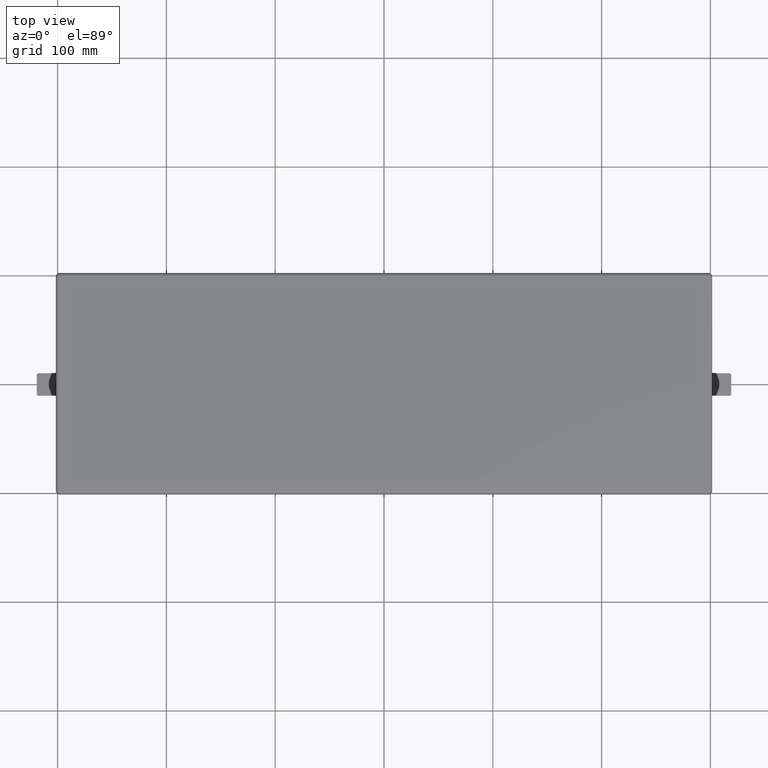
[diagram: clean part render]
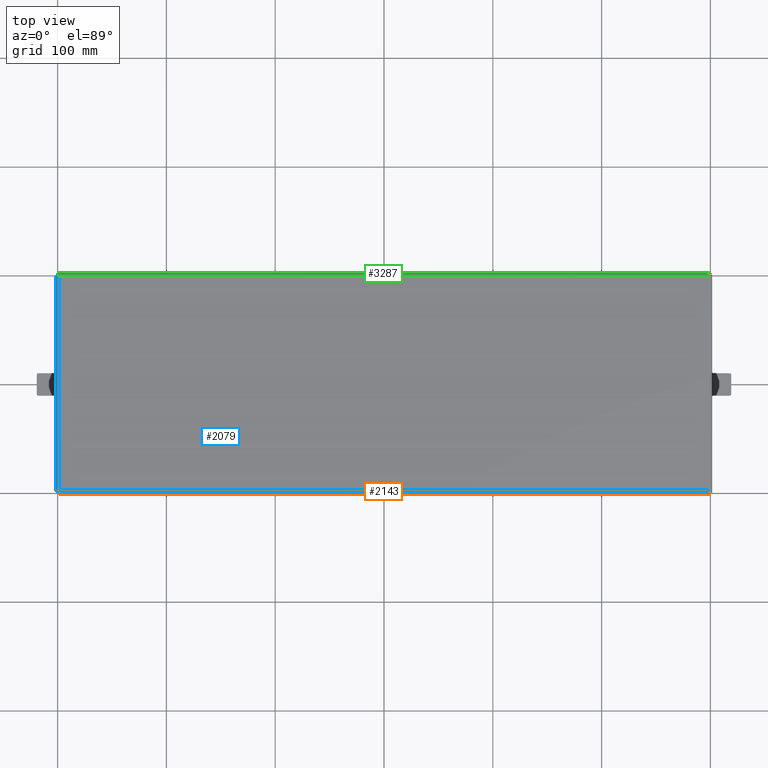
[diagram: same view with three faces highlighted in distinct colors, each labeled with its STEP entity id]
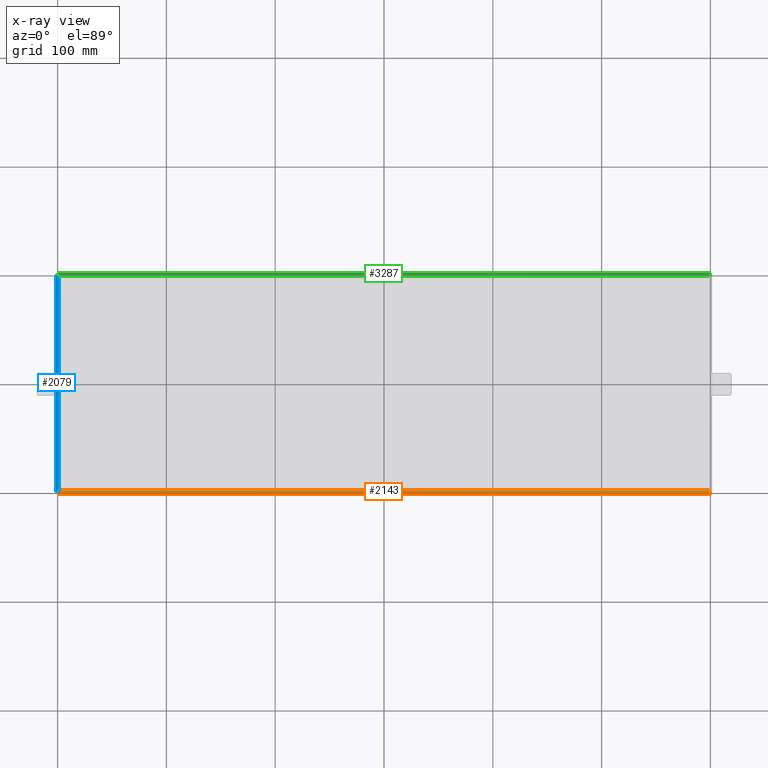
[diagram: x-ray of the same camera — body ghosted, the three highlighted faces saturated]
A machine part, top view with three faces highlighted in distinct colors.
The next image is the same camera in x-ray (body ghosted, the three faces saturated) — at least one of them is partly hidden behind the body in this view.
Their STEP definitions:

[orange] entity #2143 — the highlighted cylindrical surface (edge-blend (fillet) strip) has radius 3.048 mm, axis along (1, 0, 0).
#92 = LINE ( 'NONE', #402, #2644 ) ;
#109 = CARTESIAN_POINT ( 'NONE',  ( -11.80500000000000149, -3.996876721200198102, 0.9114097461231138730 ) ) ;
#356 = CARTESIAN_POINT ( 'NONE',  ( -11.76000000000000156, -3.895707963267948770, 1.000000000000000000 ) ) ;
#402 = CARTESIAN_POINT ( 'NONE',  ( 0.0000000000000000000, -3.879999999999999449, 1.000000000000000000 ) ) ;
#459 = EDGE_CURVE ( 'NONE', #3960, #3176, #3867, .T. ) ;
#462 = CARTESIAN_POINT ( 'NONE',  ( -11.87500000000000000, -3.999999999999999556, 0.8800000000000000044 ) ) ;
#511 = CARTESIAN_POINT ( 'NONE',  ( -11.87500000000000000, -3.879999999999999449, 0.8800000000000000044 ) ) ;
#513 = CARTESIAN_POINT ( 'NONE',  ( -11.81500000000006878, -4.000000000000000000, 0.8800000000000141043 ) ) ;
#558 = CARTESIAN_POINT ( 'NONE',  ( 11.75500000000080902, -3.879999999999484306, 1.000000000000000000 ) ) ;
#684 = CARTESIAN_POINT ( 'NONE',  ( -11.77999999999999936, -3.953745606396989132, 0.9759600210877819038 ) ) ;
#708 = CARTESIAN_POINT ( 'NONE',  ( -11.77500000000000036, -3.940434277644507599, 0.9848543666025109111 ) ) ;
#766 = CARTESIAN_POINT ( 'NONE',  ( 11.75500000000080902, -3.879999999999484306, 1.000000000000000000 ) ) ;
#788 = CARTESIAN_POINT ( 'NONE',  ( 11.77999999999999936, -3.953745606396989576, 0.9759600210877819038 ) ) ;
#839 = FACE_OUTER_BOUND ( 'NONE', #3502, .T. ) ;
#848 = CARTESIAN_POINT ( 'NONE',  ( 11.77499999999999503, -3.940434277644508931, 0.9848543666025110221 ) ) ;
#969 = CARTESIAN_POINT ( 'NONE',  ( -11.81500000000006878, -4.000000000000000000, 0.8800000000000141043 ) ) ;
#1032 = CARTESIAN_POINT ( 'NONE',  ( -11.80999999999999872, -4.000000000000000000, 0.8957079632679491032 ) ) ;
#1071 = CARTESIAN_POINT ( 'NONE',  ( 11.75999999999999979, -3.895707963267948326, 1.000000000000000000 ) ) ;
#1092 = B_SPLINE_CURVE_WITH_KNOTS ( 'NONE', 3,
 ( #1373, #2925, #3591, #3849, #1410, #788, #848, #3001, #1071, #766 ),
 .UNSPECIFIED., .F., .F.,
 ( 4, 2, 2, 2, 4 ),
 ( 0.0000000000000000000, 0.2500000000000000000, 0.5000000000000000000, 0.7500000000000000000, 1.000000000000000000 ),
 .UNSPECIFIED. ) ;
#1093 = VECTOR ( 'NONE', #2060, 39.37007874015748143 ) ;
#1181 = B_SPLINE_CURVE_WITH_KNOTS ( 'NONE', 3,
 ( #3538, #356, #1905, #708, #684, #1663, #2512, #109, #1032, #969 ),
 .UNSPECIFIED., .F., .F.,
 ( 4, 2, 2, 2, 4 ),
 ( 0.0000000000000000000, 0.2500000000000000000, 0.5000000000000000000, 0.7500000000000000000, 1.000000000000000000 ),
 .UNSPECIFIED. ) ;
#1183 = ORIENTED_EDGE ( 'NONE', *, *, #459, .T. ) ;
#1373 = CARTESIAN_POINT ( 'NONE',  ( 11.81499999999999773, -4.000000000000000000, 0.8800000000000000044 ) ) ;
#1410 = CARTESIAN_POINT ( 'NONE',  ( 11.79000000000000092, -3.975960021087781016, 0.9537456063969899089 ) ) ;
#1438 = AXIS2_PLACEMENT_3D ( 'NONE', #511, #1482, #3363 ) ;
#1482 = DIRECTION ( 'NONE',  ( 1.000000000000000000, 0.0000000000000000000, 0.0000000000000000000 ) ) ;
#1538 = CARTESIAN_POINT ( 'NONE',  ( -11.75500000000081080, -3.879999999999484750, 1.000000000000000000 ) ) ;
#1647 = DIRECTION ( 'NONE',  ( 1.000000000000000000, 0.0000000000000000000, -0.0000000000000000000 ) ) ;
#1648 = EDGE_CURVE ( 'NONE', #2258, #2941, #92, .T. ) ;
#1663 = CARTESIAN_POINT ( 'NONE',  ( -11.78999999999999915, -3.975960021087782348, 0.9537456063969897979 ) ) ;
#1691 = ORIENTED_EDGE ( 'NONE', *, *, #3340, .T. ) ;
#1815 = CYLINDRICAL_SURFACE ( 'NONE', #1438, 0.1199999999999999539 ) ;
#1905 = CARTESIAN_POINT ( 'NONE',  ( -11.76500000000000057, -3.911409746123112985, 0.9968767212001979905 ) ) ;
#2015 = ORIENTED_EDGE ( 'NONE', *, *, #2510, .T. ) ;
#2060 = DIRECTION ( 'NONE',  ( 1.000000000000000000, 0.0000000000000000000, 0.0000000000000000000 ) ) ;
#2143 = ADVANCED_FACE ( 'NONE', ( #839 ), #1815, .T. ) ;
#2258 = VERTEX_POINT ( 'NONE', #1538 ) ;
#2279 = CARTESIAN_POINT ( 'NONE',  ( 11.81499999999999773, -4.000000000000000000, 0.8800000000000000044 ) ) ;
#2510 = EDGE_CURVE ( 'NONE', #3176, #2941, #1092, .T. ) ;
#2512 = CARTESIAN_POINT ( 'NONE',  ( -11.79499999999999993, -3.984854366602510911, 0.9404342776445079322 ) ) ;
#2644 = VECTOR ( 'NONE', #1647, 39.37007874015748143 ) ;
#2925 = CARTESIAN_POINT ( 'NONE',  ( 11.80999999999999694, -3.999999999999999556, 0.8957079632679492143 ) ) ;
#2941 = VERTEX_POINT ( 'NONE', #558 ) ;
#3001 = CARTESIAN_POINT ( 'NONE',  ( 11.76499999999999879, -3.911409746123112985, 0.9968767212001979905 ) ) ;
#3176 = VERTEX_POINT ( 'NONE', #2279 ) ;
#3185 = ORIENTED_EDGE ( 'NONE', *, *, #1648, .F. ) ;
#3340 = EDGE_CURVE ( 'NONE', #2258, #3960, #1181, .T. ) ;
#3363 = DIRECTION ( 'NONE',  ( 0.0000000000000000000, 0.0000000000000000000, -1.000000000000000000 ) ) ;
#3502 = EDGE_LOOP ( 'NONE', ( #2015, #3185, #1691, #1183 ) ) ;
#3538 = CARTESIAN_POINT ( 'NONE',  ( -11.75500000000081080, -3.879999999999484750, 1.000000000000000000 ) ) ;
#3591 = CARTESIAN_POINT ( 'NONE',  ( 11.80500000000000149, -3.996876721200197657, 0.9114097461231137620 ) ) ;
#3849 = CARTESIAN_POINT ( 'NONE',  ( 11.79500000000000171, -3.984854366602508691, 0.9404342776445075991 ) ) ;
#3867 = LINE ( 'NONE', #462, #1093 ) ;
#3960 = VERTEX_POINT ( 'NONE', #513 ) ;

[blue] entity #2079 — the highlighted cylindrical surface (edge-blend (fillet) strip) has radius 3.048 mm, axis along (0, -1, 0).
#6 = LINE ( 'NONE', #2886, #793 ) ;
#28 = EDGE_CURVE ( 'NONE', #3611, #2258, #6, .T. ) ;
#88 = CARTESIAN_POINT ( 'NONE',  ( -11.87187672120019677, 3.930000000000000604, 0.9114097461231138730 ) ) ;
#235 = CARTESIAN_POINT ( 'NONE',  ( -11.87500000000000000, -3.939999999999999947, 0.8800000000000000044 ) ) ;
#271 = CARTESIAN_POINT ( 'NONE',  ( -11.75499999999999901, 4.000000000000000000, 0.8800000000000000044 ) ) ;
#331 = CARTESIAN_POINT ( 'NONE',  ( -11.75500000000080902, 3.879999999999484306, 1.000000000000000000 ) ) ;
#354 = CARTESIAN_POINT ( 'NONE',  ( -11.78640974612311609, 3.890000000000000124, 0.9968767212001979905 ) ) ;
#362 = EDGE_CURVE ( 'NONE', #3596, #2258, #3255, .T. ) ;
#473 = AXIS2_PLACEMENT_3D ( 'NONE', #271, #545, #3393 ) ;
#545 = DIRECTION ( 'NONE',  ( 0.0000000000000000000, -1.000000000000000000, 0.0000000000000000000 ) ) ;
#589 = CARTESIAN_POINT ( 'NONE',  ( -11.87500000000000000, 4.000000000000000000, 0.8800000000000000044 ) ) ;
#682 = CARTESIAN_POINT ( 'NONE',  ( -11.87500000000000000, 3.940000000000099867, 0.8800000000000242073 ) ) ;
#793 = VECTOR ( 'NONE', #1011, 39.37007874015748143 ) ;
#850 = CARTESIAN_POINT ( 'NONE',  ( -11.77070796326794877, -3.885000000000000231, 1.000000000000000000 ) ) ;
#898 = LINE ( 'NONE', #589, #1794 ) ;
#1011 = DIRECTION ( 'NONE',  ( 0.0000000000000000000, -1.000000000000000000, -0.0000000000000000000 ) ) ;
#1167 = EDGE_CURVE ( 'NONE', #3026, #3596, #898, .T. ) ;
#1210 = CARTESIAN_POINT ( 'NONE',  ( -11.85096002108778102, -3.915000000000000036, 0.9537456063969899089 ) ) ;
#1358 = EDGE_LOOP ( 'NONE', ( #1430, #2685, #2149, #3951 ) ) ;
#1430 = ORIENTED_EDGE ( 'NONE', *, *, #362, .T. ) ;
#1472 = CARTESIAN_POINT ( 'NONE',  ( -11.81543427764450627, -3.900000000000000355, 0.9848543666025110221 ) ) ;
#1507 = CARTESIAN_POINT ( 'NONE',  ( -11.87500000000000000, 3.940000000000099867, 0.8800000000000242073 ) ) ;
#1538 = CARTESIAN_POINT ( 'NONE',  ( -11.75500000000081080, -3.879999999999484750, 1.000000000000000000 ) ) ;
#1553 = CARTESIAN_POINT ( 'NONE',  ( -11.82874560639698913, -3.904999999999999361, 0.9759600210877819038 ) ) ;
#1596 = CARTESIAN_POINT ( 'NONE',  ( -11.85096002108778102, 3.914999999999999591, 0.9537456063969897979 ) ) ;
#1794 = VECTOR ( 'NONE', #2053, 39.37007874015748143 ) ;
#1949 = CARTESIAN_POINT ( 'NONE',  ( -11.75500000000080902, 3.879999999999484306, 1.000000000000000000 ) ) ;
#2053 = DIRECTION ( 'NONE',  ( 0.0000000000000000000, -1.000000000000000000, 0.0000000000000000000 ) ) ;
#2079 = ADVANCED_FACE ( 'NONE', ( #3377 ), #3059, .T. ) ;
#2087 = CARTESIAN_POINT ( 'NONE',  ( -11.75500000000081080, -3.879999999999484750, 1.000000000000000000 ) ) ;
#2147 = CARTESIAN_POINT ( 'NONE',  ( -11.87187672120019677, -3.930000000000000604, 0.9114097461231137620 ) ) ;
#2149 = ORIENTED_EDGE ( 'NONE', *, *, #2689, .T. ) ;
#2226 = CARTESIAN_POINT ( 'NONE',  ( -11.85985436660250691, 3.919999999999999929, 0.9404342776445079322 ) ) ;
#2258 = VERTEX_POINT ( 'NONE', #1538 ) ;
#2448 = CARTESIAN_POINT ( 'NONE',  ( -11.87500000000000000, -3.934999999999999609, 0.8957079632679492143 ) ) ;
#2530 = CARTESIAN_POINT ( 'NONE',  ( -11.81543427764450271, 3.899999999999999467, 0.9848543666025109111 ) ) ;
#2683 = B_SPLINE_CURVE_WITH_KNOTS ( 'NONE', 3,
 ( #1949, #3146, #354, #2530, #2883, #1596, #2226, #88, #3473, #682 ),
 .UNSPECIFIED., .F., .F.,
 ( 4, 2, 2, 2, 4 ),
 ( 0.0000000000000000000, 0.2500000000000000000, 0.5000000000000000000, 0.7500000000000000000, 1.000000000000000000 ),
 .UNSPECIFIED. ) ;
#2685 = ORIENTED_EDGE ( 'NONE', *, *, #28, .F. ) ;
#2689 = EDGE_CURVE ( 'NONE', #3611, #3026, #2683, .T. ) ;
#2883 = CARTESIAN_POINT ( 'NONE',  ( -11.82874560639698913, 3.904999999999999805, 0.9759600210877819038 ) ) ;
#2886 = CARTESIAN_POINT ( 'NONE',  ( -11.75499999999999901, 0.0000000000000000000, 1.000000000000000000 ) ) ;
#3026 = VERTEX_POINT ( 'NONE', #1507 ) ;
#3059 = CYLINDRICAL_SURFACE ( 'NONE', #473, 0.1199999999999999539 ) ;
#3146 = CARTESIAN_POINT ( 'NONE',  ( -11.77070796326795232, 3.884999999999999343, 1.000000000000000000 ) ) ;
#3255 = B_SPLINE_CURVE_WITH_KNOTS ( 'NONE', 3,
 ( #235, #2448, #2147, #3356, #1210, #1553, #1472, #3669, #850, #2087 ),
 .UNSPECIFIED., .F., .F.,
 ( 4, 2, 2, 2, 4 ),
 ( 0.0000000000000000000, 0.2500000000000000000, 0.5000000000000000000, 0.7500000000000000000, 1.000000000000000000 ),
 .UNSPECIFIED. ) ;
#3356 = CARTESIAN_POINT ( 'NONE',  ( -11.85985436660250869, -3.919999999999999929, 0.9404342776445075991 ) ) ;
#3377 = FACE_OUTER_BOUND ( 'NONE', #1358, .T. ) ;
#3393 = DIRECTION ( 'NONE',  ( 0.0000000000000000000, 0.0000000000000000000, -1.000000000000000000 ) ) ;
#3473 = CARTESIAN_POINT ( 'NONE',  ( -11.87500000000000178, 3.935000000000000497, 0.8957079632679491032 ) ) ;
#3596 = VERTEX_POINT ( 'NONE', #3725 ) ;
#3611 = VERTEX_POINT ( 'NONE', #331 ) ;
#3669 = CARTESIAN_POINT ( 'NONE',  ( -11.78640974612311254, -3.890000000000000124, 0.9968767212001979905 ) ) ;
#3725 = CARTESIAN_POINT ( 'NONE',  ( -11.87500000000000000, -3.939999999999999947, 0.8800000000000000044 ) ) ;
#3951 = ORIENTED_EDGE ( 'NONE', *, *, #1167, .T. ) ;

[green] entity #3287 — the highlighted cylindrical surface (edge-blend (fillet) strip) has radius 3.048 mm, axis along (-1, 0, 0).
#35 = VERTEX_POINT ( 'NONE', #1334 ) ;
#85 = VERTEX_POINT ( 'NONE', #1094 ) ;
#282 = CARTESIAN_POINT ( 'NONE',  ( -11.77999999999999936, 3.953745606396989576, 0.9759600210877819038 ) ) ;
#298 = CARTESIAN_POINT ( 'NONE',  ( 11.76500000000000057, 3.911409746123112985, 0.9968767212001979905 ) ) ;
#331 = CARTESIAN_POINT ( 'NONE',  ( -11.75500000000080902, 3.879999999999484306, 1.000000000000000000 ) ) ;
#340 = CARTESIAN_POINT ( 'NONE',  ( 11.77500000000000036, 3.940434277644507599, 0.9848543666025109111 ) ) ;
#371 = LINE ( 'NONE', #2443, #1775 ) ;
#415 = ORIENTED_EDGE ( 'NONE', *, *, #2294, .T. ) ;
#588 = CARTESIAN_POINT ( 'NONE',  ( -11.79500000000000171, 3.984854366602508691, 0.9404342776445075991 ) ) ;
#646 = CARTESIAN_POINT ( 'NONE',  ( 11.79499999999999993, 3.984854366602510911, 0.9404342776445079322 ) ) ;
#837 = VECTOR ( 'NONE', #3883, 39.37007874015748143 ) ;
#841 = CARTESIAN_POINT ( 'NONE',  ( 0.0000000000000000000, 3.879999999999999449, 1.000000000000000000 ) ) ;
#916 = CARTESIAN_POINT ( 'NONE',  ( -11.75500000000080902, 3.879999999999484306, 1.000000000000000000 ) ) ;
#964 = CARTESIAN_POINT ( 'NONE',  ( 11.81500000000006878, 4.000000000000000000, 0.8800000000000141043 ) ) ;
#1000 = EDGE_CURVE ( 'NONE', #35, #1646, #2566, .T. ) ;
#1010 = CYLINDRICAL_SURFACE ( 'NONE', #3928, 0.1199999999999999539 ) ;
#1094 = CARTESIAN_POINT ( 'NONE',  ( -11.81499999999999773, 4.000000000000000000, 0.8800000000000000044 ) ) ;
#1218 = CARTESIAN_POINT ( 'NONE',  ( -11.75999999999999979, 3.895707963267948326, 1.000000000000000000 ) ) ;
#1334 = CARTESIAN_POINT ( 'NONE',  ( 11.75500000000121936, 3.879999999997790550, 1.000000000000000000 ) ) ;
#1404 = ORIENTED_EDGE ( 'NONE', *, *, #3544, .T. ) ;
#1519 = CARTESIAN_POINT ( 'NONE',  ( -11.77499999999999503, 3.940434277644508931, 0.9848543666025110221 ) ) ;
#1581 = CARTESIAN_POINT ( 'NONE',  ( 11.77999999999999936, 3.953745606396989132, 0.9759600210877819038 ) ) ;
#1646 = VERTEX_POINT ( 'NONE', #2554 ) ;
#1775 = VECTOR ( 'NONE', #3683, 39.37007874015748143 ) ;
#1887 = CARTESIAN_POINT ( 'NONE',  ( 11.80500000000000149, 3.996876721200198102, 0.9114097461231138730 ) ) ;
#2270 = FACE_OUTER_BOUND ( 'NONE', #3389, .T. ) ;
#2294 = EDGE_CURVE ( 'NONE', #85, #3611, #3095, .T. ) ;
#2412 = CARTESIAN_POINT ( 'NONE',  ( 11.75500000000121936, 3.879999999997790550, 1.000000000000000000 ) ) ;
#2443 = CARTESIAN_POINT ( 'NONE',  ( 11.87500000000000000, 3.999999999999999556, 0.8800000000000000044 ) ) ;
#2457 = CARTESIAN_POINT ( 'NONE',  ( -11.80500000000000149, 3.996876721200197657, 0.9114097461231137620 ) ) ;
#2554 = CARTESIAN_POINT ( 'NONE',  ( 11.81500000000006878, 4.000000000000000000, 0.8800000000000141043 ) ) ;
#2566 = B_SPLINE_CURVE_WITH_KNOTS ( 'NONE', 3,
 ( #2412, #3657, #298, #340, #1581, #2828, #646, #1887, #4006, #964 ),
 .UNSPECIFIED., .F., .F.,
 ( 4, 2, 2, 2, 4 ),
 ( 0.0000000000000000000, 0.2500000000000000000, 0.5000000000000000000, 0.7500000000000000000, 1.000000000000000000 ),
 .UNSPECIFIED. ) ;
#2745 = CARTESIAN_POINT ( 'NONE',  ( -11.80999999999999694, 3.999999999999999556, 0.8957079632679492143 ) ) ;
#2765 = CARTESIAN_POINT ( 'NONE',  ( -11.76499999999999879, 3.911409746123112985, 0.9968767212001979905 ) ) ;
#2828 = CARTESIAN_POINT ( 'NONE',  ( 11.78999999999999915, 3.975960021087782348, 0.9537456063969897979 ) ) ;
#2847 = DIRECTION ( 'NONE',  ( 0.0000000000000000000, 0.0000000000000000000, 1.000000000000000000 ) ) ;
#2953 = LINE ( 'NONE', #841, #837 ) ;
#3069 = CARTESIAN_POINT ( 'NONE',  ( -11.79000000000000092, 3.975960021087781016, 0.9537456063969899089 ) ) ;
#3087 = CARTESIAN_POINT ( 'NONE',  ( -11.81499999999999773, 4.000000000000000000, 0.8800000000000000044 ) ) ;
#3095 = B_SPLINE_CURVE_WITH_KNOTS ( 'NONE', 3,
 ( #3087, #2745, #2457, #588, #3069, #282, #1519, #2765, #1218, #916 ),
 .UNSPECIFIED., .F., .F.,
 ( 4, 2, 2, 2, 4 ),
 ( 0.0000000000000000000, 0.2500000000000000000, 0.5000000000000000000, 0.7500000000000000000, 1.000000000000000000 ),
 .UNSPECIFIED. ) ;
#3287 = ADVANCED_FACE ( 'NONE', ( #2270 ), #1010, .T. ) ;
#3389 = EDGE_LOOP ( 'NONE', ( #415, #3817, #3541, #1404 ) ) ;
#3518 = DIRECTION ( 'NONE',  ( -1.000000000000000000, 0.0000000000000000000, 0.0000000000000000000 ) ) ;
#3541 = ORIENTED_EDGE ( 'NONE', *, *, #1000, .T. ) ;
#3544 = EDGE_CURVE ( 'NONE', #1646, #85, #371, .T. ) ;
#3611 = VERTEX_POINT ( 'NONE', #331 ) ;
#3657 = CARTESIAN_POINT ( 'NONE',  ( 11.76000000000000156, 3.895707963267948770, 1.000000000000000000 ) ) ;
#3683 = DIRECTION ( 'NONE',  ( -1.000000000000000000, 0.0000000000000000000, 0.0000000000000000000 ) ) ;
#3753 = CARTESIAN_POINT ( 'NONE',  ( 11.87500000000000000, 3.879999999999999449, 0.8800000000000000044 ) ) ;
#3817 = ORIENTED_EDGE ( 'NONE', *, *, #3964, .F. ) ;
#3883 = DIRECTION ( 'NONE',  ( -1.000000000000000000, -0.0000000000000000000, 0.0000000000000000000 ) ) ;
#3928 = AXIS2_PLACEMENT_3D ( 'NONE', #3753, #3518, #2847 ) ;
#3964 = EDGE_CURVE ( 'NONE', #35, #3611, #2953, .T. ) ;
#4006 = CARTESIAN_POINT ( 'NONE',  ( 11.80999999999999872, 4.000000000000000000, 0.8957079632679491032 ) ) ;